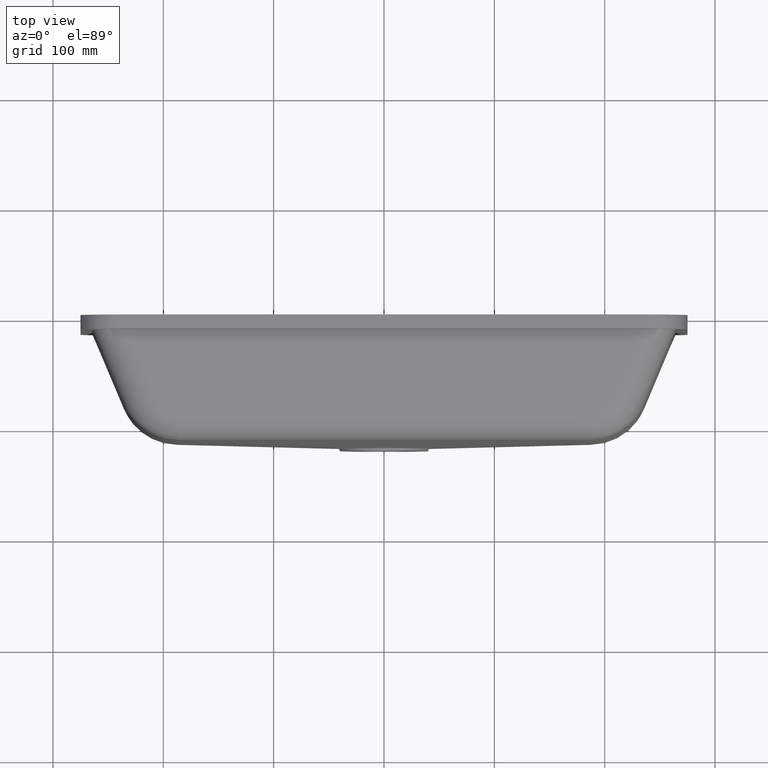
[diagram: clean part render]
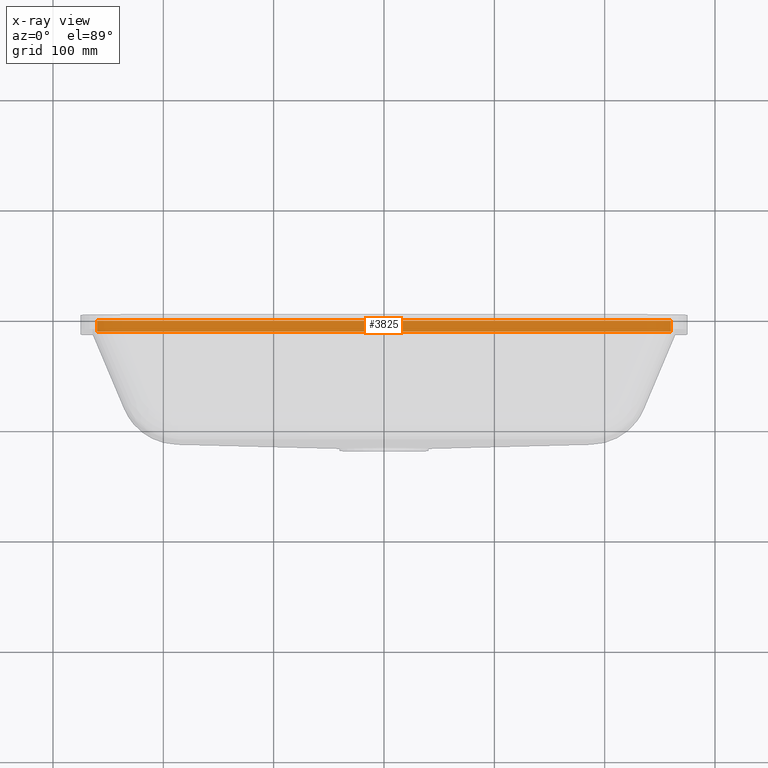
[diagram: x-ray — body ghosted, one internal face saturated and labeled with its STEP entity id]
A machine part, top view, then the same camera in x-ray: the body is ghosted and one INTERNAL B-rep face — a face not visible from any outside direction — is saturated and labeled: STEP entity #3825.
In plain terms, the highlighted planar face has unit normal (0, 0, -1).
Its self-contained STEP definition (entity closure, byte-faithful):
#130 = EDGE_LOOP ( 'NONE', ( #2841, #5154, #3490, #3815 ) ) ;
#660 = LINE ( 'NONE', #2202, #5126 ) ;
#1052 = CARTESIAN_POINT ( 'NONE',  ( -260.0000000000000568, -10.00000000000000000, -159.9999999999999716 ) ) ;
#1093 = CARTESIAN_POINT ( 'NONE',  ( -260.0000000000000568, 0.000000000000000000, -159.9999999999999716 ) ) ;
#1327 = CARTESIAN_POINT ( 'NONE',  ( 260.0000000000000568, -10.00000000000000000, -159.9999999999999716 ) ) ;
#1480 = VERTEX_POINT ( 'NONE', #1093 ) ;
#1704 = LINE ( 'NONE', #5591, #2477 ) ;
#2202 = CARTESIAN_POINT ( 'NONE',  ( 260.0000000000000568, -10.00000000000000000, -159.9999999999999716 ) ) ;
#2261 = EDGE_CURVE ( 'NONE', #3065, #4414, #4028, .T. ) ;
#2469 = AXIS2_PLACEMENT_3D ( 'NONE', #4470, #5883, #5405 ) ;
#2471 = VECTOR ( 'NONE', #5854, 1000.000000000000000 ) ;
#2477 = VECTOR ( 'NONE', #5114, 1000.000000000000000 ) ;
#2653 = EDGE_CURVE ( 'NONE', #3890, #1480, #1704, .T. ) ;
#2841 = ORIENTED_EDGE ( 'NONE', *, *, #2653, .F. ) ;
#2980 = PLANE ( 'NONE',  #2469 ) ;
#3065 = VERTEX_POINT ( 'NONE', #1327 ) ;
#3490 = ORIENTED_EDGE ( 'NONE', *, *, #2261, .T. ) ;
#3558 = FACE_OUTER_BOUND ( 'NONE', #130, .T. ) ;
#3815 = ORIENTED_EDGE ( 'NONE', *, *, #4405, .T. ) ;
#3825 = ADVANCED_FACE ( 'NONE', ( #3558 ), #2980, .T. ) ;
#3837 = VECTOR ( 'NONE', #5423, 1000.000000000000000 ) ;
#3890 = VERTEX_POINT ( 'NONE', #5500 ) ;
#4028 = LINE ( 'NONE', #1052, #2471 ) ;
#4405 = EDGE_CURVE ( 'NONE', #4414, #1480, #4430, .T. ) ;
#4414 = VERTEX_POINT ( 'NONE', #4458 ) ;
#4430 = LINE ( 'NONE', #5899, #3837 ) ;
#4458 = CARTESIAN_POINT ( 'NONE',  ( -260.0000000000000568, -10.00000000000000000, -159.9999999999999716 ) ) ;
#4470 = CARTESIAN_POINT ( 'NONE',  ( -260.0000000000000568, -10.00000000000000000, -159.9999999999999716 ) ) ;
#4477 = EDGE_CURVE ( 'NONE', #3065, #3890, #660, .T. ) ;
#5114 = DIRECTION ( 'NONE',  ( -1.000000000000000000, -0.000000000000000000, -0.000000000000000000 ) ) ;
#5126 = VECTOR ( 'NONE', #5996, 1000.000000000000000 ) ;
#5154 = ORIENTED_EDGE ( 'NONE', *, *, #4477, .F. ) ;
#5405 = DIRECTION ( 'NONE',  ( -1.000000000000000000, 0.000000000000000000, -0.000000000000000000 ) ) ;
#5423 = DIRECTION ( 'NONE',  ( 0.000000000000000000, 1.000000000000000000, 0.000000000000000000 ) ) ;
#5500 = CARTESIAN_POINT ( 'NONE',  ( 260.0000000000000568, 0.000000000000000000, -159.9999999999999716 ) ) ;
#5591 = CARTESIAN_POINT ( 'NONE',  ( -260.0000000000000568, 0.000000000000000000, -159.9999999999999716 ) ) ;
#5854 = DIRECTION ( 'NONE',  ( -1.000000000000000000, -0.000000000000000000, -0.000000000000000000 ) ) ;
#5883 = DIRECTION ( 'NONE',  ( 0.000000000000000000, 0.000000000000000000, -1.000000000000000000 ) ) ;
#5899 = CARTESIAN_POINT ( 'NONE',  ( -260.0000000000000568, -10.00000000000000000, -159.9999999999999716 ) ) ;
#5996 = DIRECTION ( 'NONE',  ( 0.000000000000000000, 1.000000000000000000, 0.000000000000000000 ) ) ;